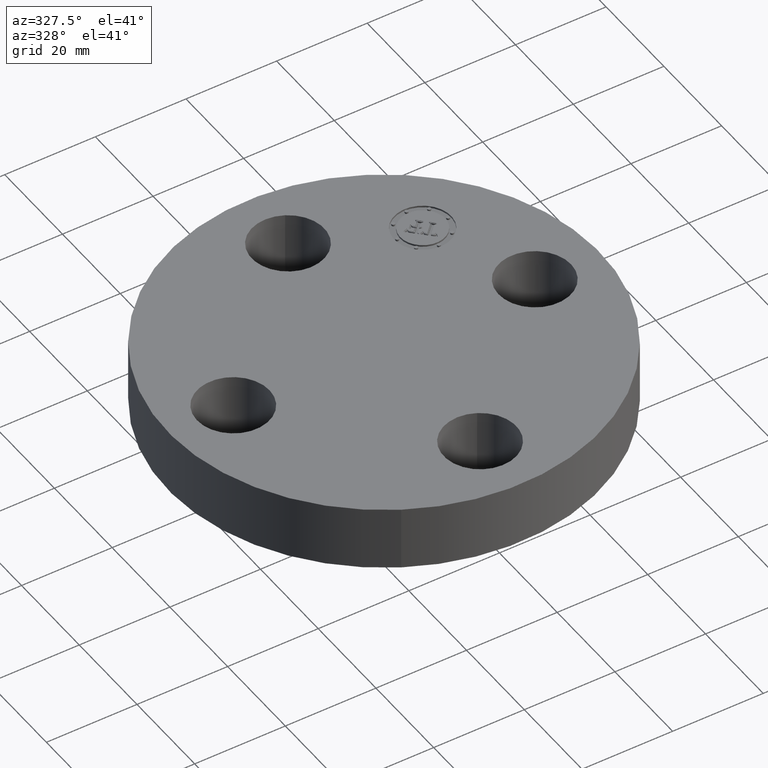
[diagram: clean part render]
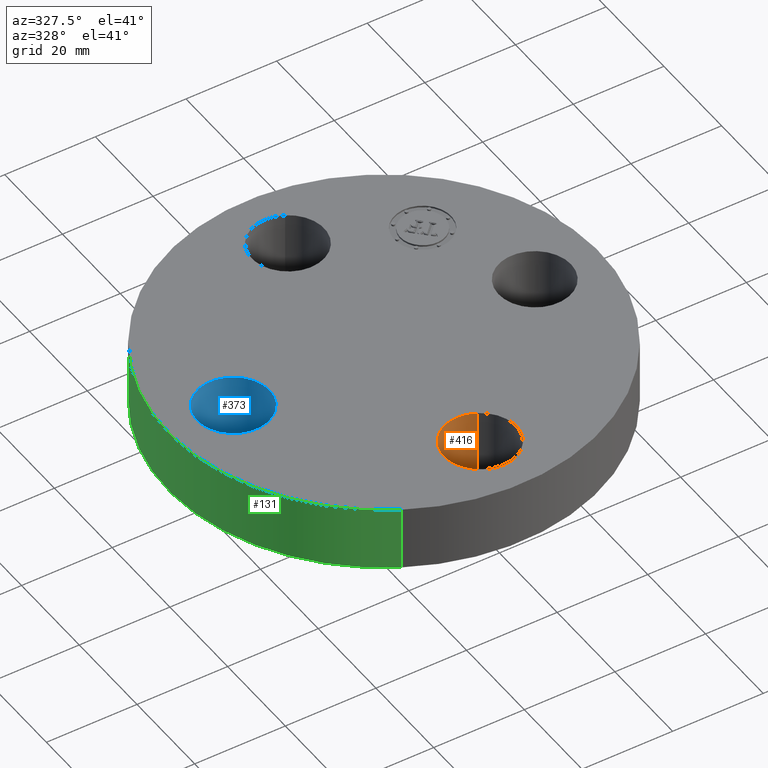
[diagram: same view with three faces highlighted in distinct colors, each labeled with its STEP entity id]
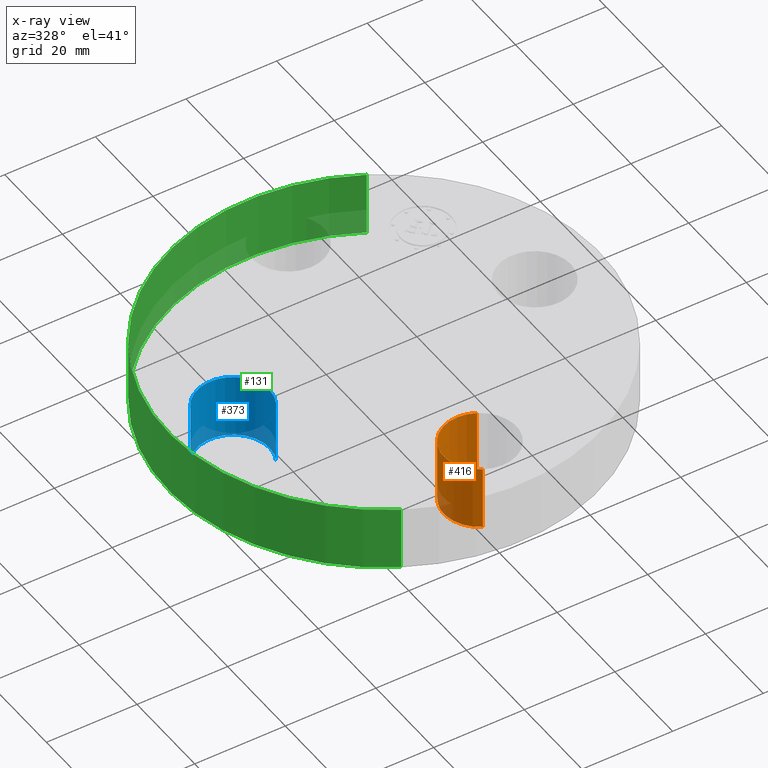
[diagram: x-ray of the same camera — body ghosted, the three highlighted faces saturated]
A machine part, auxiliary view with three faces highlighted in distinct colors.
The next image is the same camera in x-ray (body ghosted, the three faces saturated) — at least one of them is partly hidden behind the body in this view.
Their STEP definitions:

[orange] entity #416 — the highlighted cylindrical surface (partial cylindrical patch) has radius 8.001 mm, axis along (0, -0, -1).
#244=AXIS2_PLACEMENT_3D('Circle Axis2P3D',#242,#243,$) ;
#377=AXIS2_PLACEMENT_3D('Cylinder Axis2P3D',#374,#375,#376) ;
#407=AXIS2_PLACEMENT_3D('Circle Axis2P3D',#405,#406,$) ;
#237=CARTESIAN_POINT('Vertex',(0.151019044661,-1.03356149301,0.)) ;
#239=CARTESIAN_POINT('Vertex',(-0.151019044661,-1.586438507,0.)) ;
#242=CARTESIAN_POINT('Axis2P3D Location',(-1.39870617276E-016,-1.31000000001,0.)) ;
#374=CARTESIAN_POINT('Axis2P3D Location',(-1.99526869207E-016,-1.31000000001,0.556062992128)) ;
#379=CARTESIAN_POINT('Line Origine',(0.151019044661,-1.03356149301,0.280000000001)) ;
#383=CARTESIAN_POINT('Vertex',(0.151019044661,-1.03356149301,0.560000000002)) ;
#386=CARTESIAN_POINT('Line Origine',(-0.151019044661,-1.586438507,0.280000000001)) ;
#390=CARTESIAN_POINT('Vertex',(-0.151019044661,-1.586438507,0.560000000002)) ;
#405=CARTESIAN_POINT('Axis2P3D Location',(-1.99526869207E-016,-1.31000000001,0.560000000002)) ;
#243=DIRECTION('Axis2P3D Direction',(0.,0.,-0.0393700787402)) ;
#375=DIRECTION('Axis2P3D Direction',(0.,-0.,-0.0393700787402)) ;
#376=DIRECTION('Axis2P3D XDirection',(-0.0188750212049,-0.0345504945626,0.)) ;
#380=DIRECTION('Vector Direction',(0.,0.,-0.0393700787402)) ;
#387=DIRECTION('Vector Direction',(0.,0.,-0.0393700787402)) ;
#406=DIRECTION('Axis2P3D Direction',(0.,-0.,-0.0393700787402)) ;
#381=VECTOR('Line Direction',#380,0.0393700787402) ;
#388=VECTOR('Line Direction',#387,0.0393700787402) ;
#411=ORIENTED_EDGE('',*,*,#392,.F.) ;
#412=ORIENTED_EDGE('',*,*,#246,.T.) ;
#413=ORIENTED_EDGE('',*,*,#385,.T.) ;
#414=ORIENTED_EDGE('',*,*,#409,.F.) ;
#416=ADVANCED_FACE('PartBody',(#415),#378,.F.) ;
#245=CIRCLE('generated circle',#244,0.315000000001) ;
#408=CIRCLE('generated circle',#407,0.315000000001) ;
#378=CYLINDRICAL_SURFACE('generated cylinder',#377,0.315000000001) ;
#246=EDGE_CURVE('',#240,#238,#245,.T.) ;
#385=EDGE_CURVE('',#238,#384,#382,.F.) ;
#392=EDGE_CURVE('',#240,#391,#389,.F.) ;
#409=EDGE_CURVE('',#391,#384,#408,.T.) ;
#410=EDGE_LOOP('',(#411,#412,#413,#414)) ;
#415=FACE_OUTER_BOUND('',#410,.T.) ;
#382=LINE('Line',#379,#381) ;
#389=LINE('Line',#386,#388) ;
#238=VERTEX_POINT('',#237) ;
#240=VERTEX_POINT('',#239) ;
#384=VERTEX_POINT('',#383) ;
#391=VERTEX_POINT('',#390) ;

[blue] entity #373 — the highlighted cylindrical surface (partial cylindrical patch) has radius 8.001 mm, axis along (-0, 0, -1).
#262=AXIS2_PLACEMENT_3D('Circle Axis2P3D',#260,#261,$) ;
#334=AXIS2_PLACEMENT_3D('Cylinder Axis2P3D',#331,#332,#333) ;
#364=AXIS2_PLACEMENT_3D('Circle Axis2P3D',#362,#363,$) ;
#255=CARTESIAN_POINT('Vertex',(-1.03356149301,-0.151019044661,0.)) ;
#257=CARTESIAN_POINT('Vertex',(-1.586438507,0.151019044661,0.)) ;
#260=CARTESIAN_POINT('Axis2P3D Location',(-1.31000000001,0.,0.)) ;
#331=CARTESIAN_POINT('Axis2P3D Location',(-1.31000000001,-1.60428730689E-016,0.556062992128)) ;
#336=CARTESIAN_POINT('Line Origine',(-1.03356149301,-0.151019044661,0.280000000001)) ;
#340=CARTESIAN_POINT('Vertex',(-1.03356149301,-0.151019044661,0.560000000002)) ;
#343=CARTESIAN_POINT('Line Origine',(-1.586438507,0.151019044661,0.280000000001)) ;
#347=CARTESIAN_POINT('Vertex',(-1.586438507,0.151019044661,0.560000000002)) ;
#362=CARTESIAN_POINT('Axis2P3D Location',(-1.31000000001,-1.60428730689E-016,0.560000000002)) ;
#261=DIRECTION('Axis2P3D Direction',(0.,0.,-0.0393700787402)) ;
#332=DIRECTION('Axis2P3D Direction',(-0.,0.,-0.0393700787402)) ;
#333=DIRECTION('Axis2P3D XDirection',(-0.0345504945626,0.0188750212049,0.)) ;
#337=DIRECTION('Vector Direction',(0.,0.,-0.0393700787402)) ;
#344=DIRECTION('Vector Direction',(0.,0.,-0.0393700787402)) ;
#363=DIRECTION('Axis2P3D Direction',(-0.,0.,-0.0393700787402)) ;
#338=VECTOR('Line Direction',#337,0.0393700787402) ;
#345=VECTOR('Line Direction',#344,0.0393700787402) ;
#368=ORIENTED_EDGE('',*,*,#349,.F.) ;
#369=ORIENTED_EDGE('',*,*,#264,.T.) ;
#370=ORIENTED_EDGE('',*,*,#342,.T.) ;
#371=ORIENTED_EDGE('',*,*,#366,.F.) ;
#373=ADVANCED_FACE('PartBody',(#372),#335,.F.) ;
#263=CIRCLE('generated circle',#262,0.315000000001) ;
#365=CIRCLE('generated circle',#364,0.315000000001) ;
#335=CYLINDRICAL_SURFACE('generated cylinder',#334,0.315000000001) ;
#264=EDGE_CURVE('',#258,#256,#263,.T.) ;
#342=EDGE_CURVE('',#256,#341,#339,.F.) ;
#349=EDGE_CURVE('',#258,#348,#346,.F.) ;
#366=EDGE_CURVE('',#348,#341,#365,.T.) ;
#367=EDGE_LOOP('',(#368,#369,#370,#371)) ;
#372=FACE_OUTER_BOUND('',#367,.T.) ;
#339=LINE('Line',#336,#338) ;
#346=LINE('Line',#343,#345) ;
#256=VERTEX_POINT('',#255) ;
#258=VERTEX_POINT('',#257) ;
#341=VERTEX_POINT('',#340) ;
#348=VERTEX_POINT('',#347) ;

[green] entity #131 — the highlighted cylindrical surface (partial cylindrical patch) has radius 47.625 mm, axis along (0, 0, -1).
#95=AXIS2_PLACEMENT_3D('Cylinder Axis2P3D',#92,#93,#94) ;
#99=AXIS2_PLACEMENT_3D('Circle Axis2P3D',#97,#98,$) ;
#115=AXIS2_PLACEMENT_3D('Circle Axis2P3D',#113,#114,$) ;
#92=CARTESIAN_POINT('Axis2P3D Location',(0.,0.,0.155000000001)) ;
#97=CARTESIAN_POINT('Axis2P3D Location',(0.,0.,1.74838271595E-016)) ;
#101=CARTESIAN_POINT('Vertex',(-0.898922884886,-1.64546730355,1.57354444435E-016)) ;
#103=CARTESIAN_POINT('Vertex',(0.898922884886,1.64546730355,1.57354444435E-016)) ;
#106=CARTESIAN_POINT('Line Origine',(-0.898922884886,-1.64546730355,0.280000000001)) ;
#110=CARTESIAN_POINT('Vertex',(-0.898922884886,-1.64546730355,0.560000000002)) ;
#113=CARTESIAN_POINT('Axis2P3D Location',(0.,0.,0.560000000002)) ;
#117=CARTESIAN_POINT('Vertex',(0.898922884886,1.64546730355,0.560000000002)) ;
#120=CARTESIAN_POINT('Line Origine',(0.898922884886,1.64546730355,0.280000000001)) ;
#93=DIRECTION('Axis2P3D Direction',(0.,0.,-0.0393700787402)) ;
#94=DIRECTION('Axis2P3D XDirection',(0.0188750212049,0.0345504945626,0.)) ;
#98=DIRECTION('Axis2P3D Direction',(0.,0.,-0.0393700787402)) ;
#107=DIRECTION('Vector Direction',(0.,0.,-0.0393700787402)) ;
#114=DIRECTION('Axis2P3D Direction',(0.,0.,-0.0393700787402)) ;
#121=DIRECTION('Vector Direction',(0.,0.,-0.0393700787402)) ;
#108=VECTOR('Line Direction',#107,0.0393700787402) ;
#122=VECTOR('Line Direction',#121,0.0393700787402) ;
#126=ORIENTED_EDGE('',*,*,#105,.F.) ;
#127=ORIENTED_EDGE('',*,*,#112,.T.) ;
#128=ORIENTED_EDGE('',*,*,#119,.T.) ;
#129=ORIENTED_EDGE('',*,*,#124,.F.) ;
#131=ADVANCED_FACE('PartBody',(#130),#96,.T.) ;
#100=CIRCLE('generated circle',#99,1.87500000001) ;
#116=CIRCLE('generated circle',#115,1.87500000001) ;
#96=CYLINDRICAL_SURFACE('generated cylinder',#95,1.87500000001) ;
#105=EDGE_CURVE('',#102,#104,#100,.T.) ;
#112=EDGE_CURVE('',#102,#111,#109,.F.) ;
#119=EDGE_CURVE('',#111,#118,#116,.T.) ;
#124=EDGE_CURVE('',#104,#118,#123,.F.) ;
#125=EDGE_LOOP('',(#126,#127,#128,#129)) ;
#130=FACE_OUTER_BOUND('',#125,.T.) ;
#109=LINE('Line',#106,#108) ;
#123=LINE('Line',#120,#122) ;
#102=VERTEX_POINT('',#101) ;
#104=VERTEX_POINT('',#103) ;
#111=VERTEX_POINT('',#110) ;
#118=VERTEX_POINT('',#117) ;